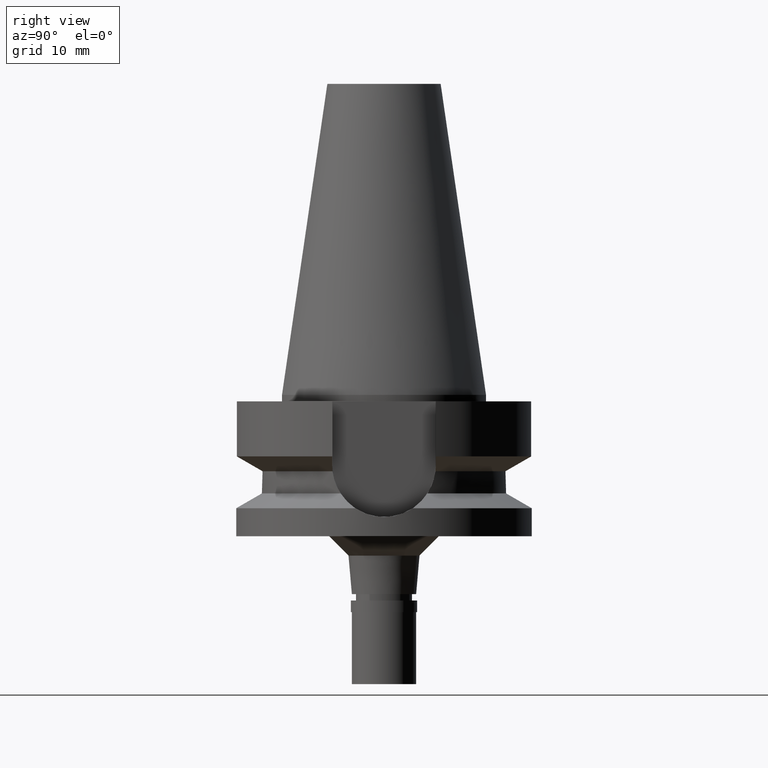
[diagram: clean part render]
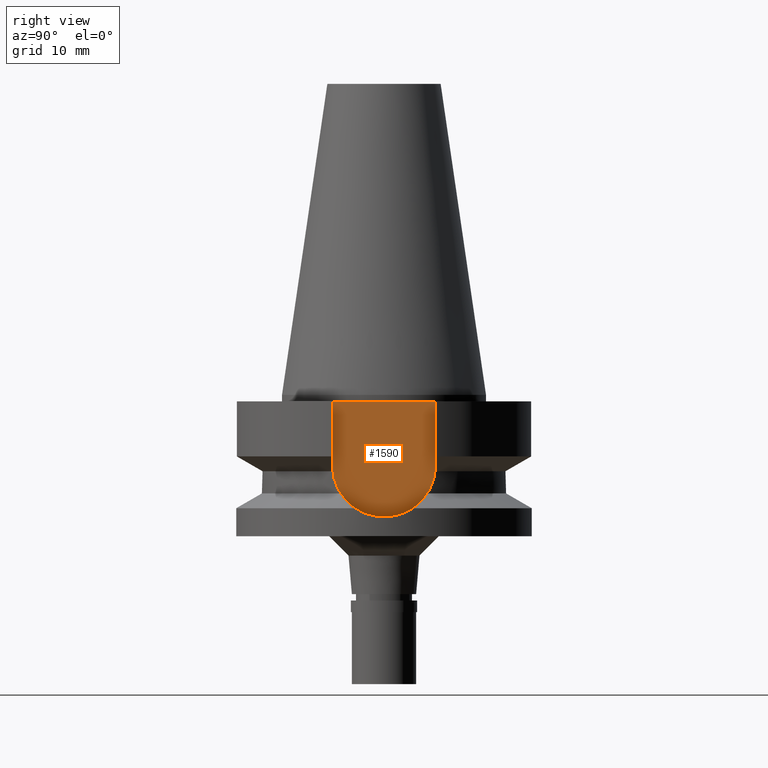
[diagram: same view with one face highlighted and labeled with its STEP entity id]
A machine part, right view. The second image highlights one B-rep face of the part: STEP entity #1590.
In plain terms, the highlighted planar face has unit normal (1, 0, 0).
Its self-contained STEP definition (entity closure, byte-faithful):
#9 = VERTEX_POINT ( 'NONE', #2877 ) ;
#99 = AXIS2_PLACEMENT_3D ( 'NONE', #1290, #2988, #2031 ) ;
#155 = LINE ( 'NONE', #2257, #1439 ) ;
#327 = EDGE_LOOP ( 'NONE', ( #1288, #2184, #1001, #2265 ) ) ;
#403 = CARTESIAN_POINT ( 'NONE',  ( 16.29999999999999716, -8.050000000000000711, -10.94999999999999929 ) ) ;
#798 = EDGE_CURVE ( 'NONE', #1759, #1812, #936, .T. ) ;
#911 = CARTESIAN_POINT ( 'NONE',  ( 16.29999999999999716, 8.050000000000000711, -1.000000000000000000 ) ) ;
#936 = LINE ( 'NONE', #2135, #955 ) ;
#947 = DIRECTION ( 'NONE',  ( -1.000000000000000000, 0.0000000000000000000, 0.0000000000000000000 ) ) ;
#955 = VECTOR ( 'NONE', #2843, 1000.000000000000000 ) ;
#1001 = ORIENTED_EDGE ( 'NONE', *, *, #2650, .F. ) ;
#1078 = EDGE_CURVE ( 'NONE', #2516, #9, #2056, .T. ) ;
#1125 = DIRECTION ( 'NONE',  ( 0.0000000000000000000, 0.0000000000000000000, -1.000000000000000000 ) ) ;
#1288 = ORIENTED_EDGE ( 'NONE', *, *, #1954, .F. ) ;
#1290 = CARTESIAN_POINT ( 'NONE',  ( 16.29999999999999716, 0.0000000000000000000, 0.0000000000000000000 ) ) ;
#1320 = DIRECTION ( 'NONE',  ( 0.0000000000000000000, 0.0000000000000000000, 1.000000000000000000 ) ) ;
#1439 = VECTOR ( 'NONE', #1125, 1000.000000000000000 ) ;
#1551 = PLANE ( 'NONE',  #99 ) ;
#1590 = ADVANCED_FACE ( 'NONE', ( #1756 ), #1551, .T. ) ;
#1732 = LINE ( 'NONE', #403, #2200 ) ;
#1756 = FACE_OUTER_BOUND ( 'NONE', #327, .T. ) ;
#1759 = VERTEX_POINT ( 'NONE', #911 ) ;
#1812 = VERTEX_POINT ( 'NONE', #2392 ) ;
#1954 = EDGE_CURVE ( 'NONE', #9, #1812, #1732, .T. ) ;
#2031 = DIRECTION ( 'NONE',  ( 0.0000000000000000000, 1.000000000000000000, 0.0000000000000000000 ) ) ;
#2056 = CIRCLE ( 'NONE', #2439, 8.050000000000000711 ) ;
#2135 = CARTESIAN_POINT ( 'NONE',  ( 16.29999999999999716, 8.050000000000000711, -1.000000000000000000 ) ) ;
#2184 = ORIENTED_EDGE ( 'NONE', *, *, #1078, .F. ) ;
#2200 = VECTOR ( 'NONE', #1320, 1000.000000000000000 ) ;
#2239 = CARTESIAN_POINT ( 'NONE',  ( 16.29999999999999716, 0.0000000000000000000, -10.94999999999999929 ) ) ;
#2257 = CARTESIAN_POINT ( 'NONE',  ( 16.29999999999999716, 8.050000000000000711, -1.000000000000000000 ) ) ;
#2265 = ORIENTED_EDGE ( 'NONE', *, *, #798, .T. ) ;
#2390 = DIRECTION ( 'NONE',  ( 0.0000000000000000000, 0.0000000000000000000, -1.000000000000000000 ) ) ;
#2392 = CARTESIAN_POINT ( 'NONE',  ( 16.29999999999999716, -8.050000000000000711, -1.000000000000000000 ) ) ;
#2439 = AXIS2_PLACEMENT_3D ( 'NONE', #2239, #947, #2390 ) ;
#2509 = CARTESIAN_POINT ( 'NONE',  ( 16.29999999999999716, 8.050000000000000711, -10.94999999999999929 ) ) ;
#2516 = VERTEX_POINT ( 'NONE', #2509 ) ;
#2650 = EDGE_CURVE ( 'NONE', #1759, #2516, #155, .T. ) ;
#2843 = DIRECTION ( 'NONE',  ( 0.0000000000000000000, -1.000000000000000000, 0.0000000000000000000 ) ) ;
#2877 = CARTESIAN_POINT ( 'NONE',  ( 16.29999999999999716, -8.050000000000000711, -10.94999999999999929 ) ) ;
#2988 = DIRECTION ( 'NONE',  ( 1.000000000000000000, 0.0000000000000000000, 0.0000000000000000000 ) ) ;